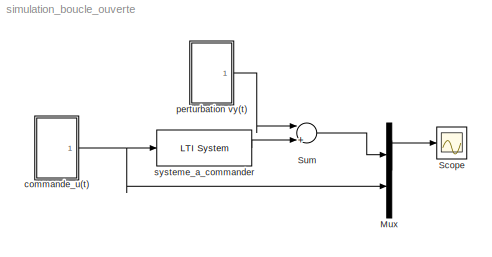
MODEL simulation_boucle_ouverte
KIND model
BLOCK [Mux] Mux
  DisplayOption = bar
  Inputs = 2
  Ports = [2, 1]
BLOCK [Scope] Scope
  DataFormat = StructureWithTime
  Floating = off
  MaxDataPoints = 50000
  NumInputPorts = 1
  Ports = [1]
  SampleTime = 0
BLOCK [Sum] Sum
  CollapseMode = All dimensions
  InputSameDT = off
  Inputs = |++
  OutDataType = sfix(16)
  OutDataTypeMode = Inherit via internal rule
  OutScaling = 2^0
  Ports = [2, 1]
  SaturateOnIntegerOverflow = off
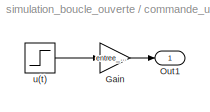
BLOCK [SubSystem] commande_u(t)
  FunctionWithSeparateData = off
  MinAlgLoopOccurrences = off
  Ports = [0, 1]
  RTWSystemCode = Auto
BLOCK [Gain] commande_u(t)/Gain
  Gain = entree_bo
  OutDataType = sfix(16)
  OutDataTypeMode = Inherit via internal rule
  OutScaling = 2^0
  ParameterDataType = sfix(16)
  ParameterDataTypeMode = Inherit via internal rule
  ParameterScaling = 2^0
  SaturateOnIntegerOverflow = off
BLOCK [Outport] commande_u(t)/Out1
  IconDisplay = Port number
BLOCK [Step] commande_u(t)/u(t)
  SampleTime = 0
  Time = 0
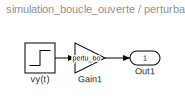
BLOCK [SubSystem] perturbation vy(t)
  FunctionWithSeparateData = off
  MinAlgLoopOccurrences = off
  Ports = [0, 1]
  RTWSystemCode = Auto
BLOCK [Gain] perturbation vy(t)/Gain1
  Gain = pertu_bo
  OutDataType = sfix(16)
  OutDataTypeMode = Inherit via internal rule
  OutScaling = 2^0
  ParameterDataType = sfix(16)
  ParameterDataTypeMode = Inherit via internal rule
  ParameterScaling = 2^0
  SaturateOnIntegerOverflow = off
BLOCK [Outport] perturbation vy(t)/Out1
  IconDisplay = Port number
BLOCK [Step] perturbation vy(t)/vy(t)
  SampleTime = 0
  Time = 5
BLOCK [Reference] systeme_a_commander  REF=cstblocks/LTI System
  FunctionWithSeparateData = off
  IC = []
  Ports = [1, 1]
  RTWMemSecDataConstants = Inherit from model
  RTWMemSecDataInternal = Inherit from model
  RTWMemSecDataParameters = Inherit from model
  RTWMemSecFuncExecute = Inherit from model
  RTWMemSecFuncInitTerm = Inherit from model
  ShowPortLabels = FromPortIcon
  SourceBlock = cstblocks/LTI System
  SourceType = LTI Block
  SystemSampleTime = -1
  sys = G1
LINE Mux:1 -> Scope:1
LINE Sum:1 -> Mux:1
LINE commande_u(t)/Gain:1 -> commande_u(t)/Out1:1
LINE commande_u(t)/u(t):1 -> commande_u(t)/Gain:1
NET commande_u(t):1 -> Mux:2, systeme_a_commander:1
LINE perturbation vy(t)/Gain1:1 -> perturbation vy(t)/Out1:1
LINE perturbation vy(t)/vy(t):1 -> perturbation vy(t)/Gain1:1
LINE perturbation vy(t):1 -> Sum:1
LINE systeme_a_commander:1 -> Sum:2
note: NET lines group one-source signal fan-out (src -> all destinations, sorted); 1:1 wires keep LINE
